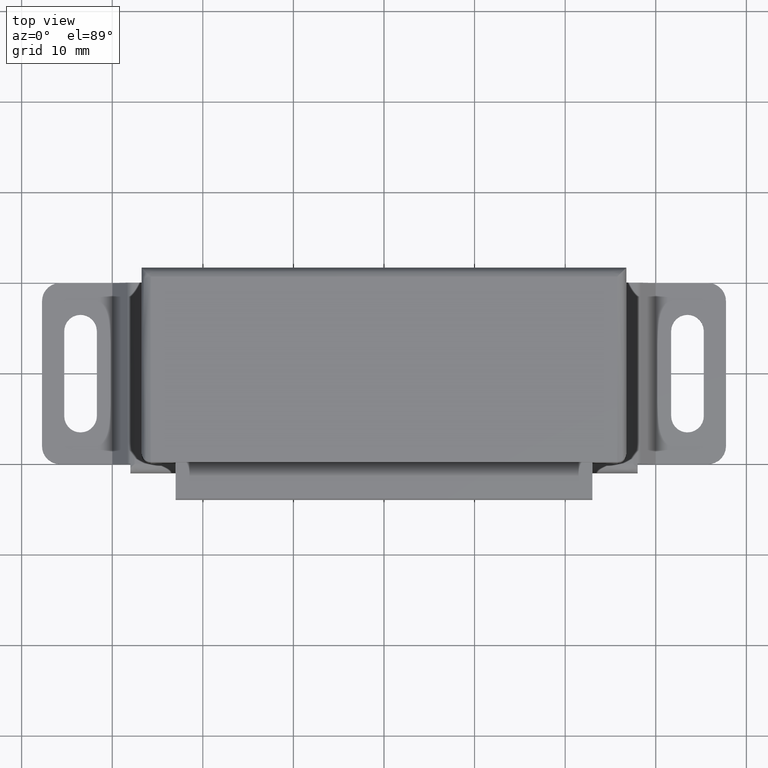
[diagram: clean part render]
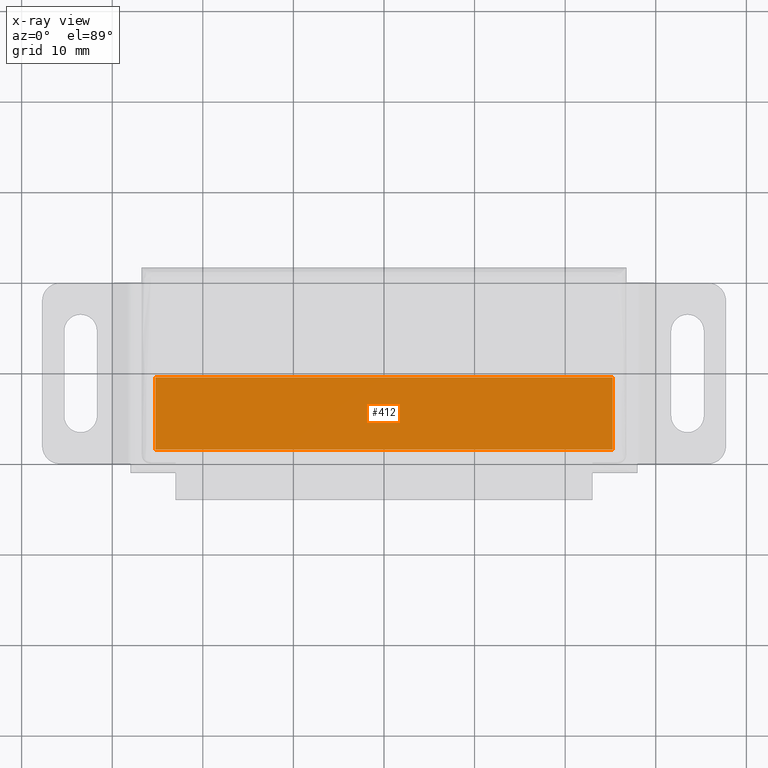
[diagram: x-ray — body ghosted, one internal face saturated and labeled with its STEP entity id]
A machine part, top view, then the same camera in x-ray: the body is ghosted and one INTERNAL B-rep face — a face not visible from any outside direction — is saturated and labeled: STEP entity #412.
In plain terms, the highlighted face is a freeform B-spline surface patch.
Its self-contained STEP definition (entity closure, byte-faithful):
#377=CARTESIAN_POINT('',(-27.772469827663350,-10.100400015505549,5.500000000000100));
#378=CARTESIAN_POINT('',(27.772489633684270,-10.100400015505549,5.500000000000100));
#379=CARTESIAN_POINT('',(-27.772469827663350,-18.899600199071170,5.500000000000100));
#380=CARTESIAN_POINT('',(27.772489633684270,-18.899600199071170,5.500000000000100));
#381=B_SPLINE_SURFACE_WITH_KNOTS('',1,1,((#377,#379),(#378,#380)),.UNSPECIFIED.,.F.,.F.,.U.,(2,2),(2,2),(0.0,55.544959461347617),(0.0,8.799200183565622),.UNSPECIFIED.);
#382=CARTESIAN_POINT('',(-25.249995000000101,-18.500000000000000,5.500000000000000));
#383=VERTEX_POINT('',#382);
#384=CARTESIAN_POINT('',(25.250012999999999,-18.500000000000000,5.500000000000000));
#385=VERTEX_POINT('',#384);
#386=CARTESIAN_POINT('',(-25.249995000000101,-18.500000000000000,5.500000000000000));
#387=CARTESIAN_POINT('',(25.250012999999999,-18.500000000000000,5.500000000000000));
#388=QUASI_UNIFORM_CURVE('',1,(#386,#387),.UNSPECIFIED.,.F.,.U.);
#389=EDGE_CURVE('',#383,#385,#388,.T.);
#390=ORIENTED_EDGE('',*,*,#389,.F.);
#391=CARTESIAN_POINT('',(-25.249995000000101,-10.500000000000000,5.500000000000000));
#392=VERTEX_POINT('',#391);
#393=CARTESIAN_POINT('',(-25.249995000000101,-10.500000000000000,5.500000000000000));
#394=CARTESIAN_POINT('',(-25.249995000000101,-18.500000000000000,5.500000000000000));
#395=QUASI_UNIFORM_CURVE('',1,(#393,#394),.UNSPECIFIED.,.F.,.U.);
#396=EDGE_CURVE('',#392,#383,#395,.T.);
#397=ORIENTED_EDGE('',*,*,#396,.F.);
#398=CARTESIAN_POINT('',(25.250012999999999,-10.500000000000000,5.500000000000000));
#399=VERTEX_POINT('',#398);
#400=CARTESIAN_POINT('',(25.250012999999999,-10.500000000000000,5.500000000000000));
#401=CARTESIAN_POINT('',(-25.249995000000101,-10.500000000000000,5.500000000000000));
#402=QUASI_UNIFORM_CURVE('',1,(#400,#401),.UNSPECIFIED.,.F.,.U.);
#403=EDGE_CURVE('',#399,#392,#402,.T.);
#404=ORIENTED_EDGE('',*,*,#403,.F.);
#405=CARTESIAN_POINT('',(25.250012999999999,-18.500000000000000,5.500000000000000));
#406=CARTESIAN_POINT('',(25.250012999999999,-10.500000000000000,5.500000000000000));
#407=QUASI_UNIFORM_CURVE('',1,(#405,#406),.UNSPECIFIED.,.F.,.U.);
#408=EDGE_CURVE('',#385,#399,#407,.T.);
#409=ORIENTED_EDGE('',*,*,#408,.F.);
#410=EDGE_LOOP('',(#390,#397,#404,#409));
#411=FACE_OUTER_BOUND('',#410,.T.);
#412=ADVANCED_FACE('',(#411),#381,.T.);